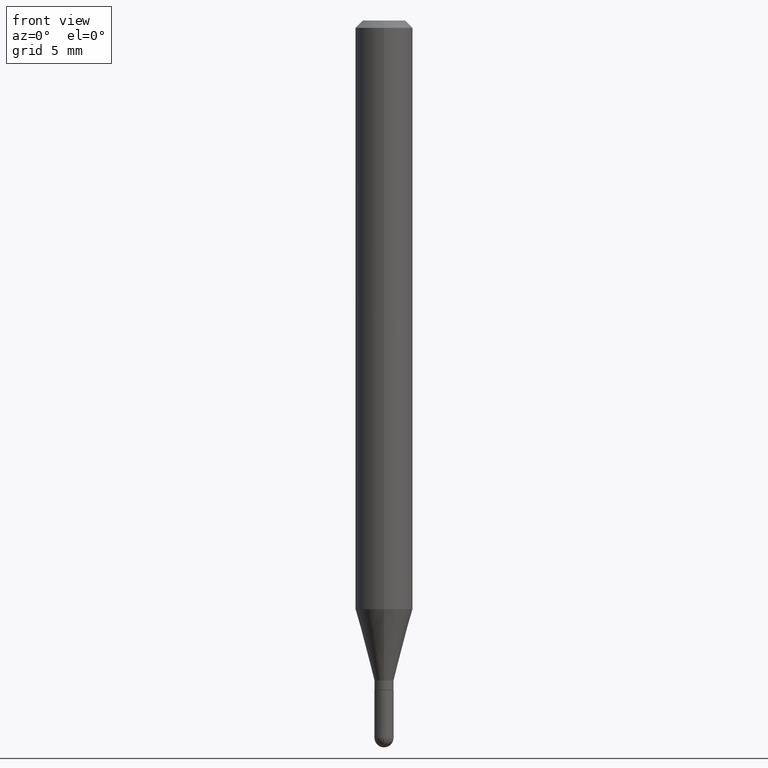
[diagram: clean part render]
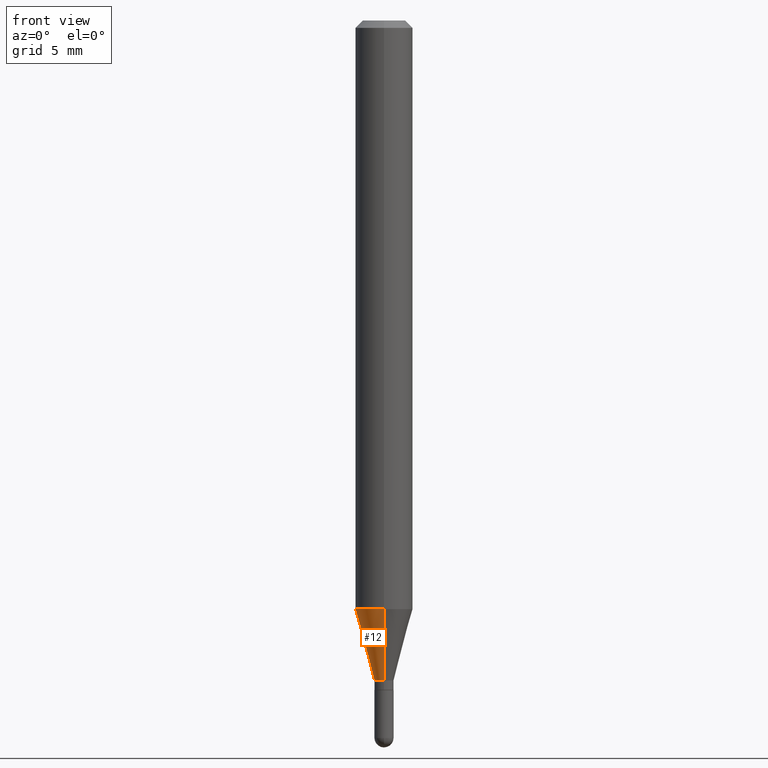
[diagram: same view with one face highlighted and labeled with its STEP entity id]
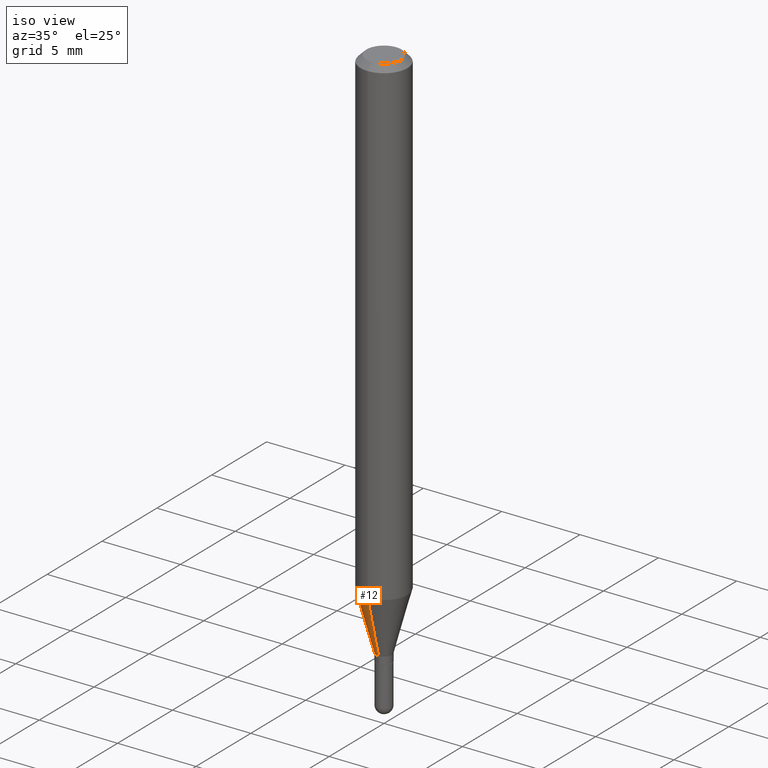
[diagram: same view with one face highlighted and labeled with its STEP entity id]
A machine part, front view. The second image highlights one B-rep face of the part: STEP entity #12.
A second angle (iso view) of the same face is appended — the face is thin or edge-on in the first view.
In plain terms, the highlighted conical surface has half-angle 15 deg.
Its self-contained STEP definition (entity closure, byte-faithful):
#4 = CIRCLE ( 'NONE', #167, 0.01969999999999979406 ) ;
#12 = ADVANCED_FACE ( 'NONE', ( #479 ), #342, .T. ) ;
#20 = CARTESIAN_POINT ( 'NONE',  ( 3.322532981410944760E-29, -4.739859278425939887E-15, -1.358099999999999863 ) ) ;
#66 = VERTEX_POINT ( 'NONE', #356 ) ;
#77 = DIRECTION ( 'NONE',  ( -1.807323732225331323E-15, -0.2588190451025183525, 0.9659258262890689783 ) ) ;
#82 = ORIENTED_EDGE ( 'NONE', *, *, #483, .F. ) ;
#89 = AXIS2_PLACEMENT_3D ( 'NONE', #428, #312, #117 ) ;
#94 = CARTESIAN_POINT ( 'NONE',  ( 3.322532981410944760E-29, -4.739859278425939887E-15, -1.358099999999999863 ) ) ;
#101 = CARTESIAN_POINT ( 'NONE',  ( 4.195754854663685822E-16, 0.05904999999999575866, -1.211243800722164643 ) ) ;
#111 = CIRCLE ( 'NONE', #89, 0.05904999999999999832 ) ;
#117 = DIRECTION ( 'NONE',  ( -6.982962677686265922E-15, -1.000000000000000000, 4.626330217890369336E-15 ) ) ;
#122 = ORIENTED_EDGE ( 'NONE', *, *, #145, .T. ) ;
#123 = AXIS2_PLACEMENT_3D ( 'NONE', #20, #379, #174 ) ;
#124 = EDGE_CURVE ( 'NONE', #442, #182, #111, .T. ) ;
#145 = EDGE_CURVE ( 'NONE', #404, #182, #188, .T. ) ;
#167 = AXIS2_PLACEMENT_3D ( 'NONE', #94, #206, #443 ) ;
#174 = DIRECTION ( 'NONE',  ( -6.982962677686265133E-15, -1.000000000000000000, 0.000000000000000000 ) ) ;
#175 = LINE ( 'NONE', #412, #235 ) ;
#182 = VERTEX_POINT ( 'NONE', #434 ) ;
#188 = LINE ( 'NONE', #273, #395 ) ;
#197 = ORIENTED_EDGE ( 'NONE', *, *, #124, .F. ) ;
#206 = DIRECTION ( 'NONE',  ( -2.446456800980005402E-29, 3.490066474063722068E-15, 1.000000000000000000 ) ) ;
#235 = VECTOR ( 'NONE', #339, 39.37007874015748854 ) ;
#273 = CARTESIAN_POINT ( 'NONE',  ( -1.375643647503847757E-16, -0.01970000000000452986, -1.358099999999999863 ) ) ;
#286 = EDGE_CURVE ( 'NONE', #66, #404, #4, .T. ) ;
#294 = CARTESIAN_POINT ( 'NONE',  ( -1.375643647503847757E-16, -0.01970000000000452986, -1.358099999999999863 ) ) ;
#309 = EDGE_LOOP ( 'NONE', ( #82, #477, #122, #197 ) ) ;
#312 = DIRECTION ( 'NONE',  ( -2.446456800980005402E-29, 3.490066474063722068E-15, 1.000000000000000000 ) ) ;
#339 = DIRECTION ( 'NONE',  ( 1.839019923739601499E-15, 0.2588190451025251249, 0.9659258262890670910 ) ) ;
#342 = CONICAL_SURFACE ( 'NONE', #123, 0.01969999999999979406, 0.2617993877991504625 ) ;
#356 = CARTESIAN_POINT ( 'NONE',  ( 2.797762022055701664E-16, 0.01969999999999505480, -1.358099999999999863 ) ) ;
#379 = DIRECTION ( 'NONE',  ( -2.446456800980005402E-29, 3.490066474063722068E-15, 1.000000000000000000 ) ) ;
#395 = VECTOR ( 'NONE', #77, 39.37007874015748854 ) ;
#404 = VERTEX_POINT ( 'NONE', #294 ) ;
#412 = CARTESIAN_POINT ( 'NONE',  ( 1.399769189447714548E-16, 0.01969999999999505480, -1.358099999999999863 ) ) ;
#428 = CARTESIAN_POINT ( 'NONE',  ( 2.963255633921609456E-29, -4.227321380817945395E-15, -1.211243800722164421 ) ) ;
#434 = CARTESIAN_POINT ( 'NONE',  ( -4.123439461173444997E-16, -0.05905000000000424493, -1.211243800722164199 ) ) ;
#442 = VERTEX_POINT ( 'NONE', #101 ) ;
#443 = DIRECTION ( 'NONE',  ( -6.982962677686265133E-15, -1.000000000000000000, 0.000000000000000000 ) ) ;
#477 = ORIENTED_EDGE ( 'NONE', *, *, #286, .T. ) ;
#479 = FACE_OUTER_BOUND ( 'NONE', #309, .T. ) ;
#483 = EDGE_CURVE ( 'NONE', #66, #442, #175, .T. ) ;